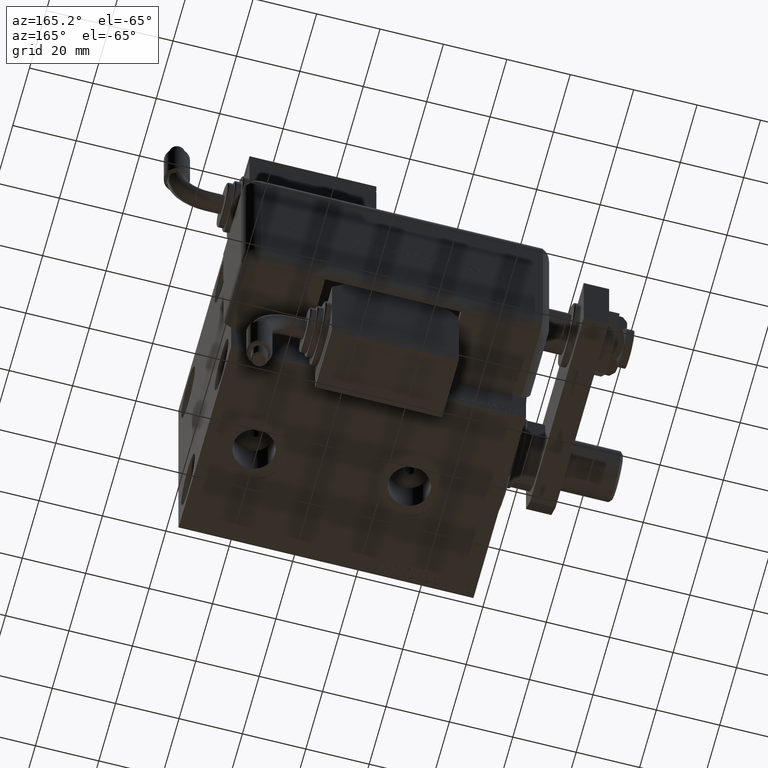
[diagram: clean part render]
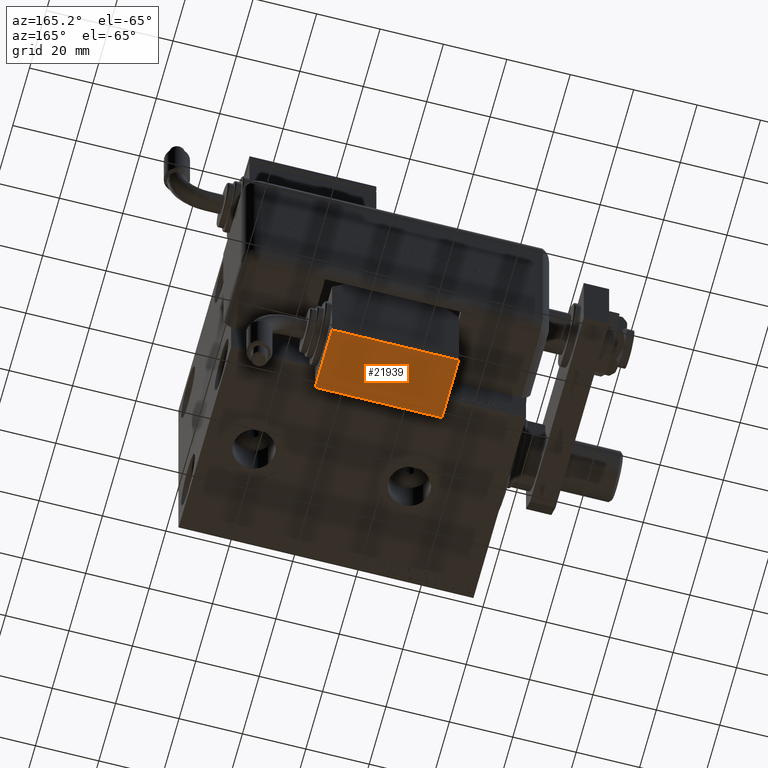
[diagram: same view with one face highlighted and labeled with its STEP entity id]
A machine part, auxiliary view. The second image highlights one B-rep face of the part: STEP entity #21939.
In plain terms, the highlighted planar face has unit normal (0, 0, 1).
Its self-contained STEP definition (entity closure, byte-faithful):
#2120 = CARTESIAN_POINT ( 'NONE',  ( -19.99999999999994316, -17.49999999999996092, -9.999999999999998224 ) ) ;
#3734 = LINE ( 'NONE', #21556, #54503 ) ;
#5694 = EDGE_LOOP ( 'NONE', ( #33719, #23099, #12494, #32605 ) ) ;
#7225 = VERTEX_POINT ( 'NONE', #33916 ) ;
#11001 = CARTESIAN_POINT ( 'NONE',  ( -19.99999999999994316, -17.49999999999996092, -9.999999999999998224 ) ) ;
#12494 = ORIENTED_EDGE ( 'NONE', *, *, #33428, .T. ) ;
#15139 = VERTEX_POINT ( 'NONE', #42431 ) ;
#21556 = CARTESIAN_POINT ( 'NONE',  ( -19.99999999999994316, -17.49999999999996092, 10.00000000000000000 ) ) ;
#21939 = ADVANCED_FACE ( 'NONE', ( #61375 ), #32966, .F. ) ;
#23099 = ORIENTED_EDGE ( 'NONE', *, *, #37165, .T. ) ;
#25993 = VECTOR ( 'NONE', #33080, 1000.000000000000000 ) ;
#28283 = DIRECTION ( 'NONE',  ( 0.000000000000000000, 1.000000000000000000, 0.000000000000000000 ) ) ;
#29775 = VERTEX_POINT ( 'NONE', #37524 ) ;
#30665 = LINE ( 'NONE', #49716, #58487 ) ;
#32605 = ORIENTED_EDGE ( 'NONE', *, *, #33212, .T. ) ;
#32966 = PLANE ( 'NONE',  #33133 ) ;
#33080 = DIRECTION ( 'NONE',  ( 0.000000000000000000, 0.000000000000000000, 1.000000000000000000 ) ) ;
#33133 = AXIS2_PLACEMENT_3D ( 'NONE', #57926, #28283, #61694 ) ;
#33212 = EDGE_CURVE ( 'NONE', #41287, #7225, #57541, .T. ) ;
#33428 = EDGE_CURVE ( 'NONE', #29775, #41287, #30665, .T. ) ;
#33719 = ORIENTED_EDGE ( 'NONE', *, *, #60923, .T. ) ;
#33916 = CARTESIAN_POINT ( 'NONE',  ( 20.00000000000005329, -17.49999999999996092, -9.999999999999998224 ) ) ;
#37165 = EDGE_CURVE ( 'NONE', #15139, #29775, #3734, .T. ) ;
#37524 = CARTESIAN_POINT ( 'NONE',  ( -19.99999999999994316, -17.49999999999996092, 10.00000000000000000 ) ) ;
#39742 = DIRECTION ( 'NONE',  ( -0.000000000000000000, -0.000000000000000000, -1.000000000000000000 ) ) ;
#41287 = VERTEX_POINT ( 'NONE', #2120 ) ;
#42431 = CARTESIAN_POINT ( 'NONE',  ( 20.00000000000005329, -17.49999999999996092, 10.00000000000000000 ) ) ;
#49716 = CARTESIAN_POINT ( 'NONE',  ( -19.99999999999994316, -17.49999999999996092, -9.999999999999998224 ) ) ;
#54503 = VECTOR ( 'NONE', #60566, 1000.000000000000000 ) ;
#56494 = LINE ( 'NONE', #61495, #25993 ) ;
#57541 = LINE ( 'NONE', #11001, #61519 ) ;
#57848 = DIRECTION ( 'NONE',  ( 1.000000000000000000, 0.000000000000000000, 0.000000000000000000 ) ) ;
#57926 = CARTESIAN_POINT ( 'NONE',  ( 0.000000000000000000, -17.49999999999996092, 0.000000000000000000 ) ) ;
#58487 = VECTOR ( 'NONE', #39742, 1000.000000000000000 ) ;
#60566 = DIRECTION ( 'NONE',  ( -1.000000000000000000, -0.000000000000000000, -0.000000000000000000 ) ) ;
#60923 = EDGE_CURVE ( 'NONE', #7225, #15139, #56494, .T. ) ;
#61375 = FACE_OUTER_BOUND ( 'NONE', #5694, .T. ) ;
#61495 = CARTESIAN_POINT ( 'NONE',  ( 20.00000000000005329, -17.49999999999996092, -9.999999999999998224 ) ) ;
#61519 = VECTOR ( 'NONE', #57848, 1000.000000000000000 ) ;
#61694 = DIRECTION ( 'NONE',  ( 0.000000000000000000, -0.000000000000000000, 1.000000000000000000 ) ) ;